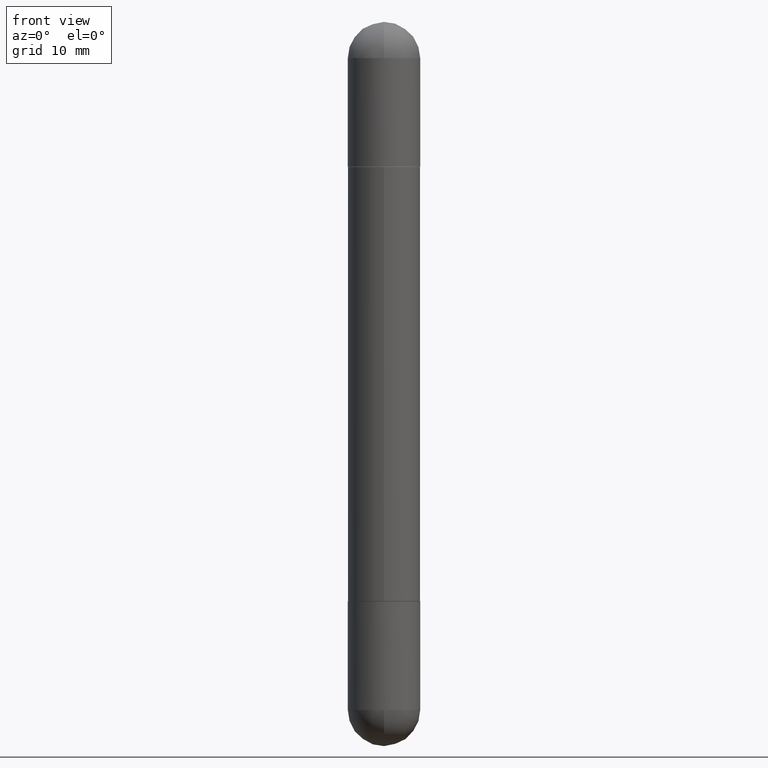
[diagram: clean part render]
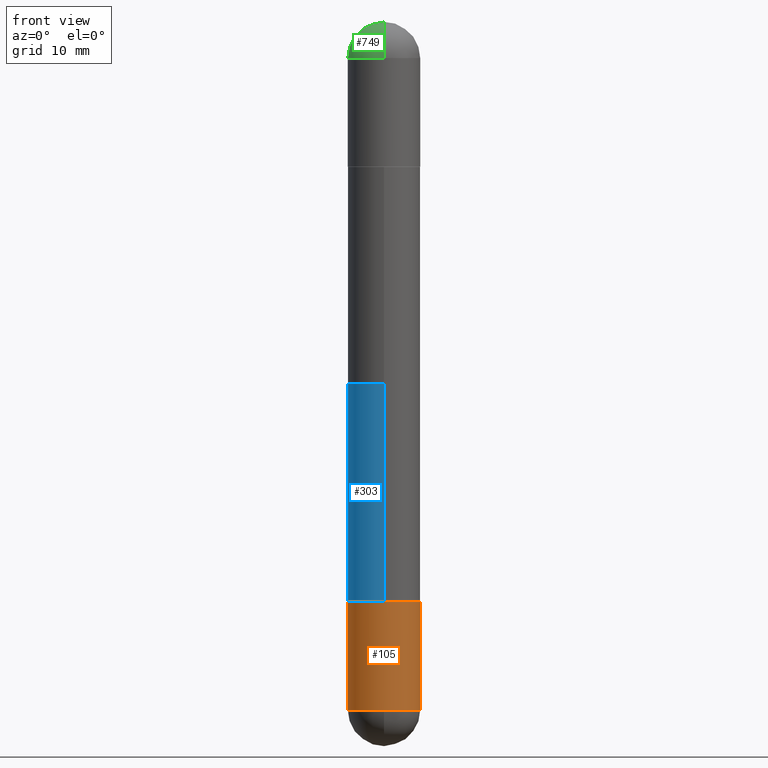
[diagram: same view with three faces highlighted in distinct colors, each labeled with its STEP entity id]
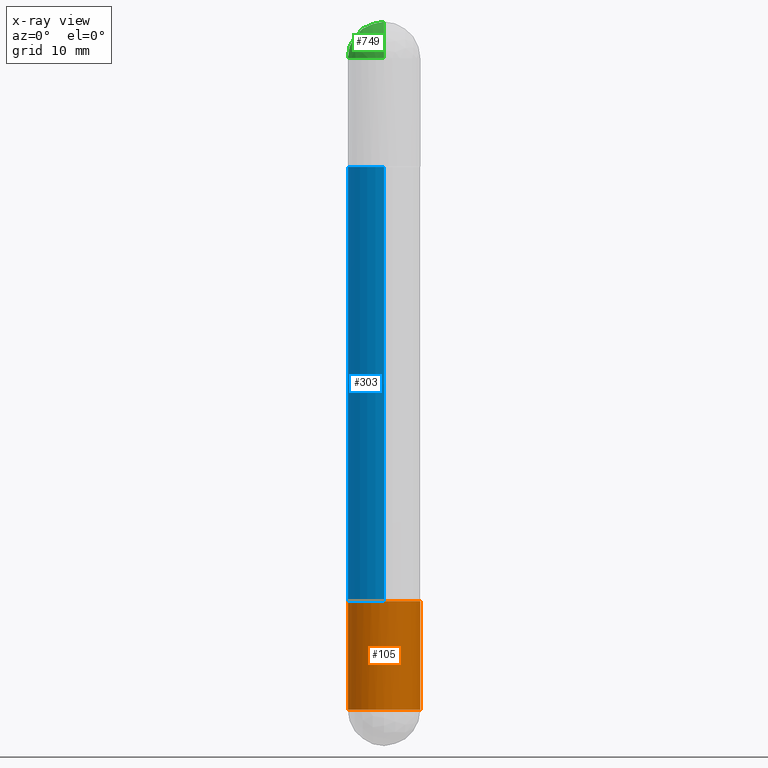
[diagram: x-ray of the same camera — body ghosted, the three highlighted faces saturated]
A machine part, front view with three faces highlighted in distinct colors.
The next image is the same camera in x-ray (body ghosted, the three faces saturated) — at least one of them is partly hidden behind the body in this view.
Their STEP definitions:

[orange] entity #105 — the highlighted cylindrical surface (edge-blend (fillet) strip) has radius 3.175 mm, axis along (-0, 0, 1).
#2 = EDGE_LOOP ( 'NONE', ( #61, #66, #502, #729, #58 ) ) ;
#12 = VECTOR ( 'NONE', #752, 39.37007874015748143 ) ;
#21 = EDGE_CURVE ( 'NONE', #317, #435, #512, .T. ) ;
#30 = EDGE_CURVE ( 'NONE', #454, #146, #715, .T. ) ;
#40 = DIRECTION ( 'NONE',  ( -2.445468806185136877E-29, 3.491481338843145188E-15, 1.000000000000000000 ) ) ;
#58 = ORIENTED_EDGE ( 'NONE', *, *, #21, .F. ) ;
#61 = ORIENTED_EDGE ( 'NONE', *, *, #594, .F. ) ;
#66 = ORIENTED_EDGE ( 'NONE', *, *, #30, .T. ) ;
#97 = CARTESIAN_POINT ( 'NONE',  ( -8.881784197000694204E-16, -0.1250000000000086320, -2.374999999999999556 ) ) ;
#105 = ADVANCED_FACE ( 'NONE', ( #225 ), #795, .T. ) ;
#109 = VECTOR ( 'NONE', #40, 39.37007874015748143 ) ;
#115 = LINE ( 'NONE', #159, #109 ) ;
#124 = LINE ( 'NONE', #493, #12 ) ;
#146 = VERTEX_POINT ( 'NONE', #97 ) ;
#159 = CARTESIAN_POINT ( 'NONE',  ( 0.1250000000000000000, -8.728703347107833388E-16, 6.095220969744919741E-30 ) ) ;
#184 = DIRECTION ( 'NONE',  ( 1.000000000000000000, -6.982962677686270655E-15, 0.000000000000000000 ) ) ;
#225 = FACE_OUTER_BOUND ( 'NONE', #2, .T. ) ;
#245 = DIRECTION ( 'NONE',  ( 1.000000000000000000, -6.982962677686266711E-15, 4.876176775795935793E-29 ) ) ;
#262 = AXIS2_PLACEMENT_3D ( 'NONE', #619, #812, #685 ) ;
#279 = CARTESIAN_POINT ( 'NONE',  ( -0.1250000000000000000, -6.749437009019255804E-15, -2.000000000000000000 ) ) ;
#310 = AXIS2_PLACEMENT_3D ( 'NONE', #468, #411, #245 ) ;
#317 = VERTEX_POINT ( 'NONE', #279 ) ;
#369 = CARTESIAN_POINT ( 'NONE',  ( 0.1250000000000000000, -8.510485763430165164E-15, -2.375000000000000000 ) ) ;
#411 = DIRECTION ( 'NONE',  ( -2.445468806185136597E-29, 3.491481338843145583E-15, 1.000000000000000000 ) ) ;
#425 = CARTESIAN_POINT ( 'NONE',  ( 5.807988414689700538E-29, -8.292268179752471696E-15, -2.375000000000000000 ) ) ;
#435 = VERTEX_POINT ( 'NONE', #640 ) ;
#454 = VERTEX_POINT ( 'NONE', #609 ) ;
#468 = CARTESIAN_POINT ( 'NONE',  ( 0.000000000000000000, 0.000000000000000000, 0.000000000000000000 ) ) ;
#493 = CARTESIAN_POINT ( 'NONE',  ( -0.1250000000000000000, 8.881784197001252323E-16, -6.148668862818632227E-30 ) ) ;
#495 = VERTEX_POINT ( 'NONE', #369 ) ;
#502 = ORIENTED_EDGE ( 'NONE', *, *, #687, .T. ) ;
#512 = CIRCLE ( 'NONE', #262, 0.1250000000000000000 ) ;
#526 = AXIS2_PLACEMENT_3D ( 'NONE', #590, #545, #184 ) ;
#545 = DIRECTION ( 'NONE',  ( -2.445468806185136597E-29, 3.491481338843145583E-15, 1.000000000000000000 ) ) ;
#551 = CIRCLE ( 'NONE', #686, 0.1250000000000000000 ) ;
#590 = CARTESIAN_POINT ( 'NONE',  ( 5.807988414689700538E-29, -8.292268179752471696E-15, -2.375000000000000000 ) ) ;
#594 = EDGE_CURVE ( 'NONE', #454, #317, #124, .T. ) ;
#609 = CARTESIAN_POINT ( 'NONE',  ( -0.1250000000000000000, -6.749437009019256592E-15, -2.375000000000000000 ) ) ;
#619 = CARTESIAN_POINT ( 'NONE',  ( 4.890937612370273194E-29, -6.982962677686291165E-15, -2.000000000000000000 ) ) ;
#640 = CARTESIAN_POINT ( 'NONE',  ( 0.1250000000000000000, -7.855833012397075293E-15, -2.000000000000000000 ) ) ;
#663 = DIRECTION ( 'NONE',  ( -2.445468806185136597E-29, 3.491481338843145583E-15, 1.000000000000000000 ) ) ;
#671 = DIRECTION ( 'NONE',  ( 1.000000000000000000, -6.982962677686270655E-15, 0.000000000000000000 ) ) ;
#685 = DIRECTION ( 'NONE',  ( 1.000000000000000000, -6.982962677686270655E-15, 0.000000000000000000 ) ) ;
#686 = AXIS2_PLACEMENT_3D ( 'NONE', #425, #663, #671 ) ;
#687 = EDGE_CURVE ( 'NONE', #146, #495, #551, .T. ) ;
#706 = EDGE_CURVE ( 'NONE', #495, #435, #115, .T. ) ;
#715 = CIRCLE ( 'NONE', #526, 0.1250000000000000000 ) ;
#729 = ORIENTED_EDGE ( 'NONE', *, *, #706, .T. ) ;
#752 = DIRECTION ( 'NONE',  ( -2.445468806185136877E-29, 3.491481338843145188E-15, 1.000000000000000000 ) ) ;
#795 = CYLINDRICAL_SURFACE ( 'NONE', #310, 0.1250000000000000000 ) ;
#812 = DIRECTION ( 'NONE',  ( -2.445468806185136597E-29, 3.491481338843145583E-15, 1.000000000000000000 ) ) ;

[blue] entity #303 — the highlighted cylindrical surface (edge-blend (fillet) strip) has radius 3.175 mm, axis along (-0, 0, -1).
#6 = ORIENTED_EDGE ( 'NONE', *, *, #546, .T. ) ;
#23 = CARTESIAN_POINT ( 'NONE',  ( -8.728703347107363030E-16, -0.1250000000000072442, -1.998999999999999000 ) ) ;
#38 = CARTESIAN_POINT ( 'NONE',  ( 4.889363480997510233E-29, -6.978223391549338005E-15, -0.5010000000000010001 ) ) ;
#104 = CARTESIAN_POINT ( 'NONE',  ( -8.728703347107364016E-16, -0.1250000000000072720, -0.5010000000000014442 ) ) ;
#116 = LINE ( 'NONE', #481, #660 ) ;
#155 = VERTEX_POINT ( 'NONE', #347 ) ;
#161 = VERTEX_POINT ( 'NONE', #392 ) ;
#223 = CYLINDRICAL_SURFACE ( 'NONE', #263, 0.1250000000000001388 ) ;
#263 = AXIS2_PLACEMENT_3D ( 'NONE', #592, #786, #337 ) ;
#290 = ORIENTED_EDGE ( 'NONE', *, *, #450, .T. ) ;
#299 = AXIS2_PLACEMENT_3D ( 'NONE', #542, #416, #668 ) ;
#303 = ADVANCED_FACE ( 'NONE', ( #344 ), #223, .T. ) ;
#315 = ORIENTED_EDGE ( 'NONE', *, *, #348, .F. ) ;
#337 = DIRECTION ( 'NONE',  ( -6.982962677686265922E-15, -1.000000000000000000, -4.370956789862816416E-15 ) ) ;
#344 = FACE_OUTER_BOUND ( 'NONE', #695, .T. ) ;
#347 = CARTESIAN_POINT ( 'NONE',  ( 8.575622497214732956E-16, 0.1249999999999932693, -1.999000000000000110 ) ) ;
#348 = EDGE_CURVE ( 'NONE', #161, #464, #428, .T. ) ;
#392 = CARTESIAN_POINT ( 'NONE',  ( 8.575622497214919324E-16, 0.1249999999999932693, -0.5010000000000006670 ) ) ;
#395 = LINE ( 'NONE', #471, #731 ) ;
#413 = DIRECTION ( 'NONE',  ( -6.982962677686265922E-15, -1.000000000000000000, -3.278217592397108762E-15 ) ) ;
#416 = DIRECTION ( 'NONE',  ( -2.445904692845178140E-29, 3.490857124336838375E-15, 1.000000000000000000 ) ) ;
#420 = EDGE_CURVE ( 'NONE', #464, #437, #395, .T. ) ;
#428 = CIRCLE ( 'NONE', #489, 0.1250000000000002776 ) ;
#437 = VERTEX_POINT ( 'NONE', #23 ) ;
#450 = EDGE_CURVE ( 'NONE', #161, #155, #116, .T. ) ;
#464 = VERTEX_POINT ( 'NONE', #104 ) ;
#471 = CARTESIAN_POINT ( 'NONE',  ( -8.728703347107842263E-16, -0.1250000000000001388, -2.500000000000001332 ) ) ;
#481 = CARTESIAN_POINT ( 'NONE',  ( 8.575622497214423328E-16, 0.1250000000000001388, -2.500000000000000000 ) ) ;
#489 = AXIS2_PLACEMENT_3D ( 'NONE', #38, #520, #413 ) ;
#520 = DIRECTION ( 'NONE',  ( 2.445904692845178140E-29, -3.490857124336838375E-15, 1.000000000000000000 ) ) ;
#542 = CARTESIAN_POINT ( 'NONE',  ( 4.889363480997510233E-29, -6.978223391549338005E-15, -1.998999999999999666 ) ) ;
#546 = EDGE_CURVE ( 'NONE', #155, #437, #648, .T. ) ;
#550 = ORIENTED_EDGE ( 'NONE', *, *, #420, .F. ) ;
#592 = CARTESIAN_POINT ( 'NONE',  ( 0.000000000000000000, 0.000000000000000000, -2.500000000000000444 ) ) ;
#648 = CIRCLE ( 'NONE', #299, 0.1250000000000002776 ) ;
#660 = VECTOR ( 'NONE', #674, 39.37007874015748143 ) ;
#668 = DIRECTION ( 'NONE',  ( -6.982962677686265922E-15, -1.000000000000000000, 4.370956789862811683E-15 ) ) ;
#674 = DIRECTION ( 'NONE',  ( -2.445904692845177860E-29, 3.490857124336837980E-15, -1.000000000000000000 ) ) ;
#695 = EDGE_LOOP ( 'NONE', ( #315, #290, #6, #550 ) ) ;
#725 = DIRECTION ( 'NONE',  ( -2.445904692845177860E-29, 3.490857124336837980E-15, -1.000000000000000000 ) ) ;
#731 = VECTOR ( 'NONE', #725, 39.37007874015748143 ) ;
#786 = DIRECTION ( 'NONE',  ( -2.445904692845178140E-29, 3.490857124336838375E-15, -1.000000000000000000 ) ) ;

[green] entity #749 — the highlighted spherical surface has radius 3.175 mm.
#18 = CARTESIAN_POINT ( 'NONE',  ( 8.728703347108403340E-16, 0.1249999999999915623, -0.1250000000000000000 ) ) ;
#37 = DIRECTION ( 'NONE',  ( 1.000000000000000000, -6.982962677686265922E-15, -4.883557194083112901E-29 ) ) ;
#84 = DIRECTION ( 'NONE',  ( 2.445468806185136597E-29, -3.491481338843145583E-15, 1.000000000000000000 ) ) ;
#99 = SPHERICAL_SURFACE ( 'NONE', #232, 0.1250000000000001943 ) ;
#114 = CIRCLE ( 'NONE', #224, 0.1250000000000001943 ) ;
#137 = CIRCLE ( 'NONE', #461, 0.1250000000000001943 ) ;
#153 = AXIS2_PLACEMENT_3D ( 'NONE', #549, #244, #537 ) ;
#183 = DIRECTION ( 'NONE',  ( -6.982962677686265133E-15, -1.000000000000000000, 0.000000000000000000 ) ) ;
#224 = AXIS2_PLACEMENT_3D ( 'NONE', #747, #295, #183 ) ;
#231 = CARTESIAN_POINT ( 'NONE',  ( -0.1250000000000000000, -6.780053178997941168E-15, -0.1250000000000004441 ) ) ;
#232 = AXIS2_PLACEMENT_3D ( 'NONE', #349, #37, #796 ) ;
#244 = DIRECTION ( 'NONE',  ( 2.445468806185136597E-29, -3.491481338843145583E-15, 1.000000000000000000 ) ) ;
#253 = ORIENTED_EDGE ( 'NONE', *, *, #381, .T. ) ;
#256 = ORIENTED_EDGE ( 'NONE', *, *, #569, .T. ) ;
#264 = VERTEX_POINT ( 'NONE', #18 ) ;
#295 = DIRECTION ( 'NONE',  ( -1.000000000000000000, 6.982962677686265922E-15, 4.883557194083112340E-29 ) ) ;
#300 = DIRECTION ( 'NONE',  ( 6.860497997771529196E-15, 1.000000000000000000, 0.000000000000000000 ) ) ;
#349 = CARTESIAN_POINT ( 'NONE',  ( 5.476868636775814291E-29, -8.766450547892521992E-15, -0.1250000000000004441 ) ) ;
#376 = CIRCLE ( 'NONE', #389, 0.1250000000000000000 ) ;
#381 = EDGE_CURVE ( 'NONE', #390, #553, #376, .T. ) ;
#389 = AXIS2_PLACEMENT_3D ( 'NONE', #720, #84, #516 ) ;
#390 = VERTEX_POINT ( 'NONE', #231 ) ;
#421 = DIRECTION ( 'NONE',  ( 1.000000000000000000, -6.860497997771530774E-15, -4.840798879624142912E-29 ) ) ;
#461 = AXIS2_PLACEMENT_3D ( 'NONE', #612, #421, #300 ) ;
#469 = CARTESIAN_POINT ( 'NONE',  ( 5.787897026856327965E-29, -9.195231672753244292E-15, -2.561107494060246644E-16 ) ) ;
#516 = DIRECTION ( 'NONE',  ( 1.000000000000000000, -6.982962677686270655E-15, 0.000000000000000000 ) ) ;
#529 = CIRCLE ( 'NONE', #153, 0.1250000000000000000 ) ;
#534 = EDGE_CURVE ( 'NONE', #264, #390, #529, .T. ) ;
#537 = DIRECTION ( 'NONE',  ( 1.000000000000000000, -6.982962677686270655E-15, 0.000000000000000000 ) ) ;
#549 = CARTESIAN_POINT ( 'NONE',  ( 5.807988414689700538E-29, -8.292268179752471696E-15, -0.1250000000000004441 ) ) ;
#553 = VERTEX_POINT ( 'NONE', #804 ) ;
#569 = EDGE_CURVE ( 'NONE', #744, #264, #114, .T. ) ;
#588 = ORIENTED_EDGE ( 'NONE', *, *, #534, .T. ) ;
#612 = CARTESIAN_POINT ( 'NONE',  ( 5.476868636775814291E-29, -8.766450547892521992E-15, -0.1250000000000004441 ) ) ;
#627 = EDGE_CURVE ( 'NONE', #744, #553, #137, .T. ) ;
#633 = EDGE_LOOP ( 'NONE', ( #704, #256, #588, #253 ) ) ;
#656 = FACE_OUTER_BOUND ( 'NONE', #633, .T. ) ;
#704 = ORIENTED_EDGE ( 'NONE', *, *, #627, .F. ) ;
#720 = CARTESIAN_POINT ( 'NONE',  ( 5.807988414689700538E-29, -8.292268179752471696E-15, -0.1250000000000004441 ) ) ;
#744 = VERTEX_POINT ( 'NONE', #469 ) ;
#747 = CARTESIAN_POINT ( 'NONE',  ( 5.476868636775814291E-29, -8.766450547892521992E-15, -0.1250000000000004441 ) ) ;
#749 = ADVANCED_FACE ( 'NONE', ( #656 ), #99, .T. ) ;
#796 = DIRECTION ( 'NONE',  ( 6.982962677686265922E-15, 1.000000000000000000, 3.551402391763536859E-15 ) ) ;
#804 = CARTESIAN_POINT ( 'NONE',  ( -8.575622497213856334E-16, -0.1250000000000086320, -0.1250000000000008882 ) ) ;